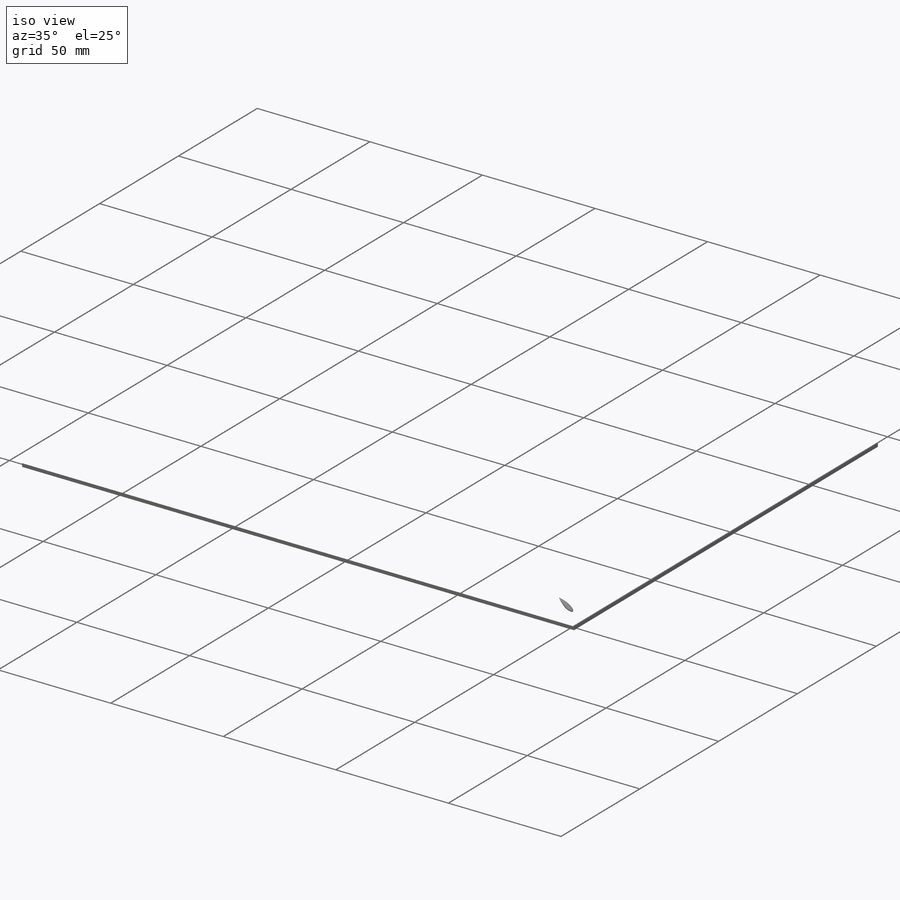
[diagram: iso view]
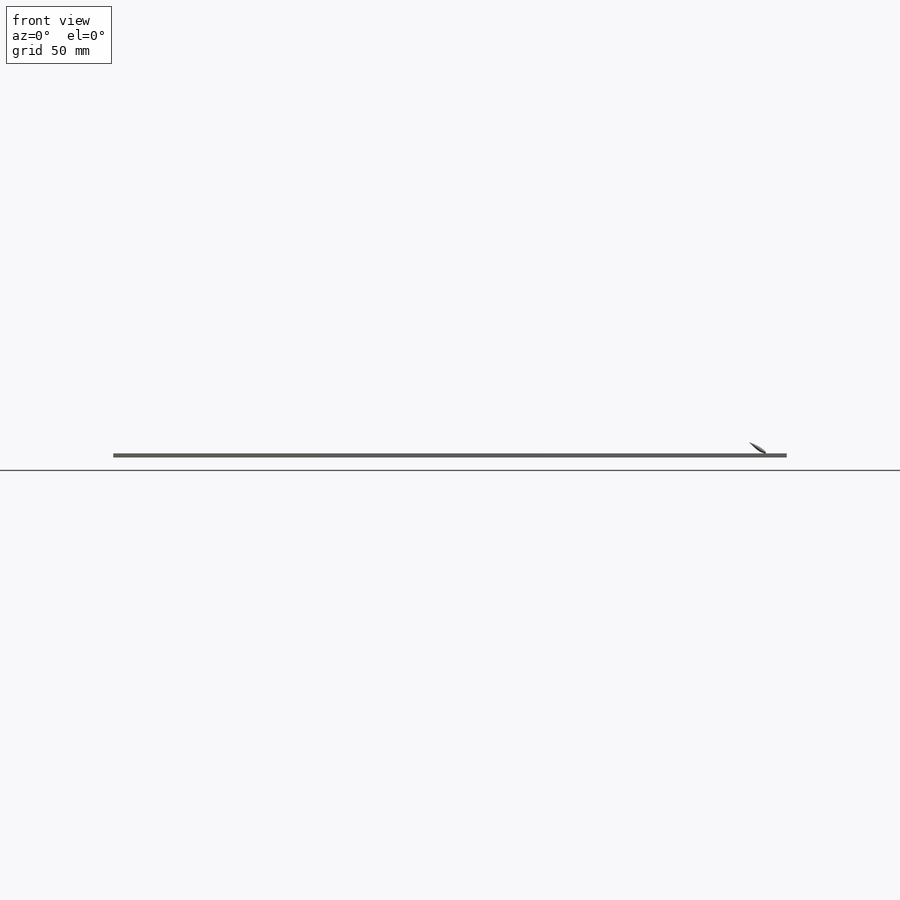
[diagram: front view]
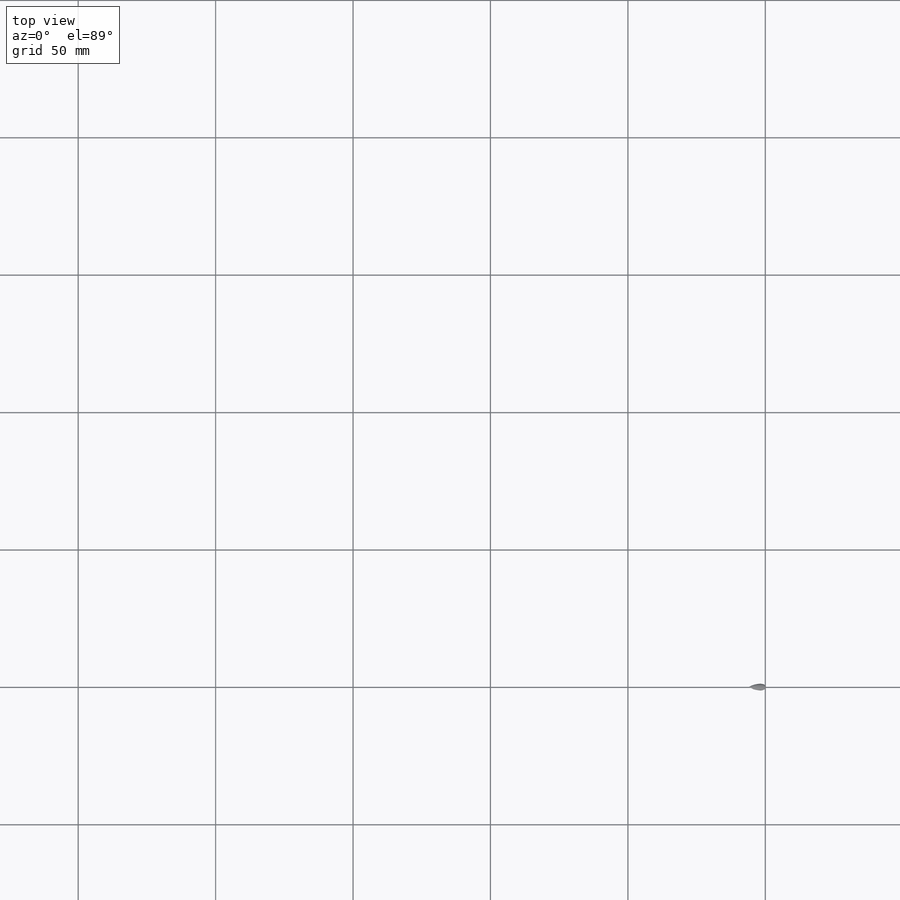
[diagram: top view]
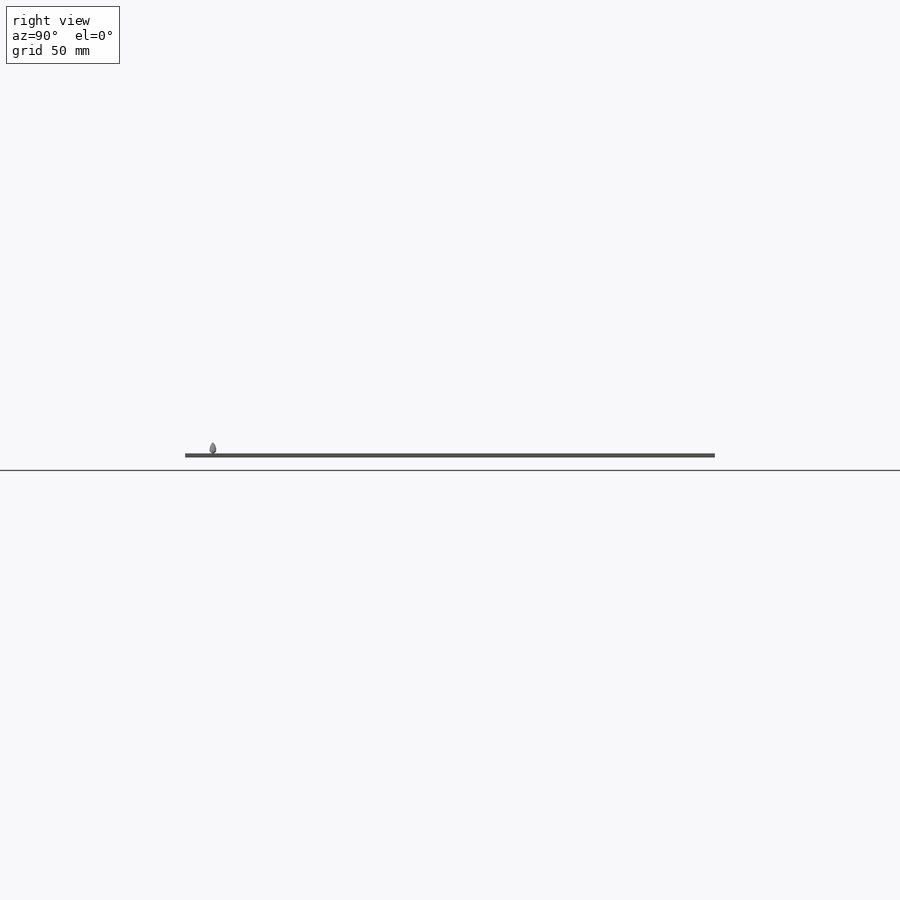
[diagram: right view]
SOLIDWORKS PART (.sldprt)
format: sldprt  version: not decoded by parser v0  size: 54,377,472 bytes
history: native  units: mm
features: sketch x6, plane x3, material x1, pattern_linear x1, extrude x1 (+13 scaffold rows collapsed)
feature tree (25):
  scaffold x13  (default folders/planes/origin — collapsed)
  material  "Material <not specified>"
  sketch  "Sketch1"  dims[D1=0.25mm]
  plane  "Plane1"  Offset=1mm
  sketch  "Sketch2"  dims[D1=~0.308859mm]
  plane  "Plane2"  Offset=0.15mm
  plane  "Plane3"  Offset=0.65mm
  sketch  "Sketch3"  dims[D1=~0.066465mm]
  sketch  "Sketch4"  dims[D1=~0.124627mm]
  sketch  "Sketch5"  dims[c1.D1=50.0mm c2.D1=105.0deg]
  pattern_linear  "LPattern1"  Count1=25 Count2=25 Spacing1=7.2mm Spacing2=7.2mm
  sketch  "Sketch6"
  extrude  "Extrude1"  Depth=1.5mm
decode coverage: 7 of 8 modeling features carry decoded parameters
note: ~ marks probable driven/reference dimensions
note: suppression state not decoded; provenance and decode notes live in map.json
